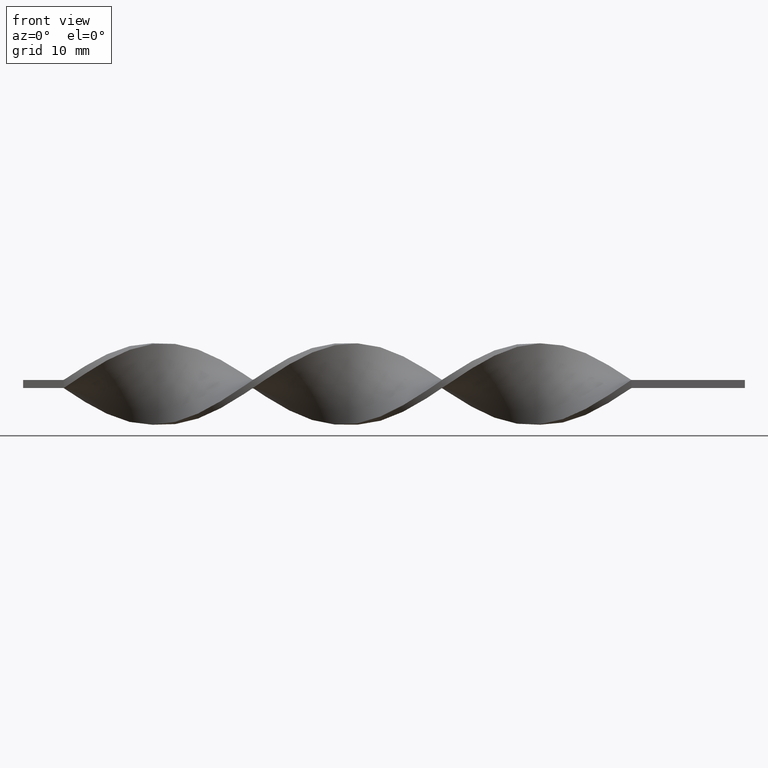
[diagram: clean part render]
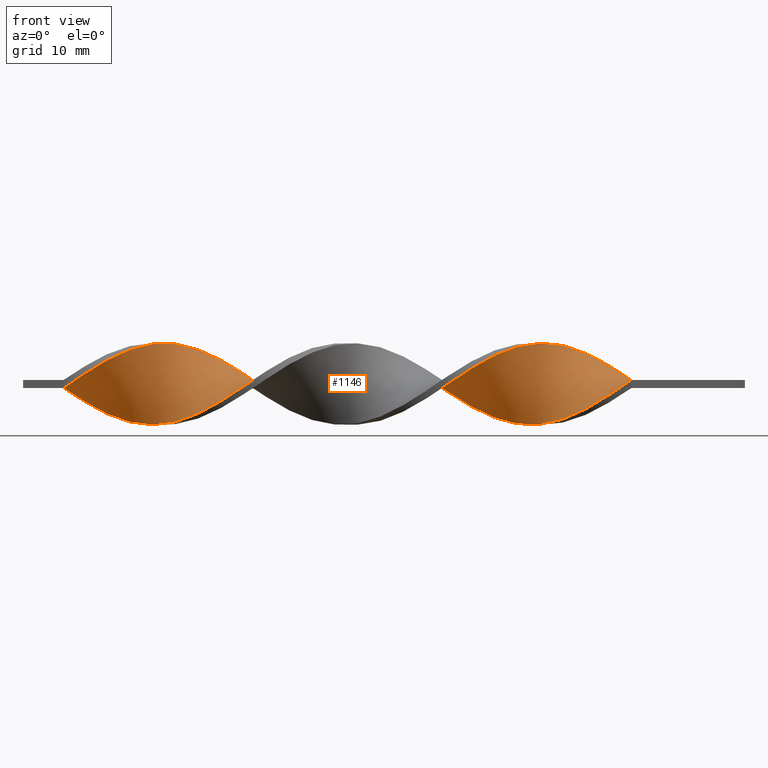
[diagram: same view with one face highlighted and labeled with its STEP entity id]
A machine part, front view. The second image highlights one B-rep face of the part: STEP entity #1146.
In plain terms, the highlighted face is a freeform B-spline surface patch.
Its self-contained STEP definition (entity closure, byte-faithful):
#4 = CARTESIAN_POINT ( 'NONE',  ( -22.07692307692308376, 1.894702360851920897, 4.693865276989235724 ) ) ;
#13 = CARTESIAN_POINT ( 'NONE',  ( -68.74358974358973740, 1.894702360851921119, 4.693865276989235724 ) ) ;
#14 = EDGE_CURVE ( 'NONE', #1318, #1596, #146, .T. ) ;
#16 = CARTESIAN_POINT ( 'NONE',  ( -37.33333333333333570, -5.000000000000002665, -0.4999999999999993339 ) ) ;
#20 = CARTESIAN_POINT ( 'NONE',  ( -31.05128205128205821, -3.716969558312888111, 3.436045048790599576 ) ) ;
#21 = CARTESIAN_POINT ( 'NONE',  ( -73.23076923076924061, -1.099037838325643834, 4.903276030362608395 ) ) ;
#23 = CARTESIAN_POINT ( 'NONE',  ( -47.20512820512820440, -0.7163302668880203727, -5.010902036907449286 ) ) ;
#28 = CARTESIAN_POINT ( 'NONE',  ( -72.33333333333332860, -0.5036723384328442021, -5.036723384328412934 ) ) ;
#34 = CARTESIAN_POINT ( 'NONE',  ( -82.20512820512820440, -4.974366919274040733, 0.7111074127247645205 ) ) ;
#43 = CARTESIAN_POINT ( 'NONE',  ( -84.00000000000000000, -5.000000000000002665, -0.4999999999999993339 ) ) ;
#44 = CARTESIAN_POINT ( 'NONE',  ( -55.28205128205128460, -3.410992411735107144, 3.689868665289526728 ) ) ;
#48 = CARTESIAN_POINT ( 'NONE',  ( -51.69230769230769340, 2.240532556555383081, -4.497778769905806051 ) ) ;
#49 = CARTESIAN_POINT ( 'NONE',  ( -37.33333333333332860, 4.999999999999995559, -0.5000000000000006661 ) ) ;
#52 = CARTESIAN_POINT ( 'NONE',  ( -43.61538461538461320, 3.716969558312884114, 3.436045048790596024 ) ) ;
#56 = CARTESIAN_POINT ( 'NONE',  ( -58.87179487179486870, -4.735051254986480274, 1.682049230150818753 ) ) ;
#67 = CARTESIAN_POINT ( 'NONE',  ( -52.58974358974359120, 2.786661774892322807, -4.225728863414811798 ) ) ;
#89 = CARTESIAN_POINT ( 'NONE',  ( -63.35897435897436480, 4.530813501584090908, 2.256988544190327239 ) ) ;
#98 = CARTESIAN_POINT ( 'NONE',  ( -18.48717948717948900, 3.859023582904235639, 3.275699201900568180 ) ) ;
#104 = CARTESIAN_POINT ( 'NONE',  ( -26.56410256410256210, 0.1063289642275847546, -5.023812710617930222 ) ) ;
#109 = CARTESIAN_POINT ( 'NONE',  ( -26.56410256410256210, -1.099037838325643834, 4.903276030362608395 ) ) ;
#110 = CARTESIAN_POINT ( 'NONE',  ( -84.00000000000000000, -1.666666666666670071, -0.4999999999999997780 ) ) ;
#112 = CARTESIAN_POINT ( 'NONE',  ( -59.76923076923076650, 5.060710991611127696, -0.1071099161113055059 ) ) ;
#117 = CARTESIAN_POINT ( 'NONE',  ( -42.71794871794872250, -3.410992411735112029, -3.689868665289525396 ) ) ;
#121 = CARTESIAN_POINT ( 'NONE',  ( -31.94871794871794535, 3.410992411735102703, -3.689868665289526284 ) ) ;
#122 = CARTESIAN_POINT ( 'NONE',  ( -58.87179487179486870, 4.974366919274036292, -0.7111074127247674070 ) ) ;
#126 = CARTESIAN_POINT ( 'NONE',  ( -16.69230769230770051, 4.530813501584090908, 2.256988544190326795 ) ) ;
#135 = CARTESIAN_POINT ( 'NONE',  ( -25.66666666666667140, -0.5036723384328436470, 5.036723384328413822 ) ) ;
#144 = CARTESIAN_POINT ( 'NONE',  ( -28.35897435897435770, -2.240532556555387078, 4.497778769905806939 ) ) ;
#146 =( BOUNDED_CURVE ( )  B_SPLINE_CURVE ( 2, ( #1580, #833, #205, #1457, #212, #98, #733, #1471, #594, #465, #1093, #336, #864, #1348, #1359, #1235, #144, #906, #374, #20, #524, #357, #1540, #1303, #1525, #418, #408, #291, #672, #803, #680, #556, #1416, #285, #1175, #1282, #666, #1186, #1432, #1288, #1558, #426, #297, #67, #1036, #1031, #272, #659, #1534, #1394, #122, #112, #363, #1349, #450, #89, #585, #456, #327, #845, #1148, #13, #757, #1259, #1137, #1131, #21, #512, #403, #1443, #1542, #427, #308, #1154, #813, #409, #1425, #181, #918 ),
 .UNSPECIFIED., .F., .T. ) 
 B_SPLINE_CURVE_WITH_KNOTS ( ( 3, 2, 2, 2, 2, 2, 2, 2, 2, 2, 2, 2, 2, 2, 2, 2, 2, 2, 2, 2, 2, 2, 2, 2, 2, 2, 2, 2, 2, 2, 2, 2, 2, 2, 2, 2, 2, 2, 2, 3 ),
 ( 0.000000000000000000, 0.01923076923076923184, 0.03846153846153846367, 0.05769230769230768857, 0.07692307692307692735, 0.09615384615384615918, 0.1153846153846153771, 0.1346153846153846090, 0.1538461538461538547, 0.1730769230769230449, 0.1923076923076923184, 0.2115384615384615363, 0.2307692307692307543, 0.2500000000000000000, 0.2692307692307692180, 0.2884615384615384359, 0.3076923076923077094, 0.3269230769230769273, 0.3461538461538460898, 0.3653846153846153633, 0.3846153846153846367, 0.4038461538461539102, 0.4230769230769230727, 0.4423076923076922906, 0.4615384615384615086, 0.4807692307692307820, 0.5000000000000000000, 0.5192307692307692735, 0.5384615384615384359, 0.5576923076923077094, 0.5769230769230768718, 0.5961538461538461453, 0.6153846153846154188, 0.6346153846153845812, 0.6538461538461538547, 0.6730769230769230171, 0.6923076923076921796, 0.7115384615384615641, 0.7307692307692307265, 0.7500000000000000000 ),
 .UNSPECIFIED. ) 
 CURVE ( )  GEOMETRIC_REPRESENTATION_ITEM ( )  RATIONAL_B_SPLINE_CURVE ( ( 1.000000000000000000, 0.9927088740980539727, 1.000000000000000000, 0.9927088740980539727, 1.000000000000000000, 0.9927088740980539727, 1.000000000000000000, 0.9927088740980539727, 1.000000000000000000, 0.9927088740980539727, 1.000000000000000000, 0.9927088740980539727, 1.000000000000000000, 0.9927088740980539727, 1.000000000000000000, 0.9927088740980539727, 1.000000000000000000, 0.9927088740980539727, 1.000000000000000000, 0.9927088740980539727, 1.000000000000000000, 0.9927088740980539727, 1.000000000000000000, 0.9927088740980539727, 1.000000000000000000, 0.9927088740980539727, 1.000000000000000000, 0.9927088740980539727, 1.000000000000000000, 0.9927088740980539727, 1.000000000000000000, 0.9927088740980539727, 1.000000000000000000, 0.9927088740980539727, 1.000000000000000000, 0.9927088740980539727, 1.000000000000000000, 0.9927088740980539727, 1.000000000000000000, 0.9927088740980539727, 1.000000000000000000, 0.9927088740980539727, 1.000000000000000000, 0.9927088740980539727, 1.000000000000000000, 0.9927088740980539727, 1.000000000000000000, 0.9927088740980539727, 1.000000000000000000, 0.9927088740980539727, 1.000000000000000000, 0.9927088740980539727, 1.000000000000000000, 0.9927088740980539727, 1.000000000000000000, 0.9927088740980539727, 1.000000000000000000, 0.9927088740980539727, 1.000000000000000000, 0.9927088740980539727, 1.000000000000000000, 0.9927088740980539727, 1.000000000000000000, 0.9927088740980539727, 1.000000000000000000, 0.9927088740980539727, 1.000000000000000000, 0.9927088740980539727, 1.000000000000000000, 0.9927088740980539727, 1.000000000000000000, 0.9927088740980539727, 1.000000000000000000, 0.9927088740980539727, 1.000000000000000000, 0.9927088740980539727, 1.000000000000000000, 0.9927088740980539727, 1.000000000000000000 ) ) 
 REPRESENTATION_ITEM ( '' )  );
#147 = CARTESIAN_POINT ( 'NONE',  ( -41.82051282051282470, -3.859023582904240968, -3.275699201900568180 ) ) ;
#156 = CARTESIAN_POINT ( 'NONE',  ( -82.20512820512820440, 4.735051254986476721, -1.682049230150816088 ) ) ;
#159 = CARTESIAN_POINT ( 'NONE',  ( -66.05128205128204399, 3.410992411735105811, 3.689868665289526284 ) ) ;
#161 = CARTESIAN_POINT ( 'NONE',  ( -74.12820512820510999, 0.7163302668880149326, -5.010902036907446622 ) ) ;
#164 = CARTESIAN_POINT ( 'NONE',  ( -52.58974358974358410, 2.786661774892322807, -4.225728863414811798 ) ) ;
#166 = CARTESIAN_POINT ( 'NONE',  ( -23.87179487179487580, -1.694403338218445576, -4.769828676396802081 ) ) ;
#167 = CARTESIAN_POINT ( 'NONE',  ( -56.17948717948717530, -3.859023582904238303, 3.275699201900568180 ) ) ;
#170 = CARTESIAN_POINT ( 'NONE',  ( -77.71794871794874382, 2.962961240565973320, -4.104038128678484831 ) ) ;
#173 = CARTESIAN_POINT ( 'NONE',  ( -74.12820512820512420, -1.694403338218445132, 4.769828676396804745 ) ) ;
#175 = CARTESIAN_POINT ( 'NONE',  ( -61.56410256410256920, -5.060710991611132137, -0.1071099161113024806 ) ) ;
#178 = CARTESIAN_POINT ( 'NONE',  ( -76.82051282051281760, -3.251815666602609234, 3.830886956102704133 ) ) ;
#179 = CARTESIAN_POINT ( 'NONE',  ( -35.53846153846153300, 4.735051254986476721, -1.682049230150816088 ) ) ;
#181 = CARTESIAN_POINT ( 'NONE',  ( -83.10256410256410220, -5.060710991611133025, 0.1071099161113049647 ) ) ;
#185 = CARTESIAN_POINT ( 'NONE',  ( -39.12820512820512420, 4.974366919274035403, 0.7111074127247607457 ) ) ;
#186 = FACE_OUTER_BOUND ( 'NONE', #982, .T. ) ;
#205 = CARTESIAN_POINT ( 'NONE',  ( -15.79487179487179560, 4.735051254986478497, 1.682049230150814756 ) ) ;
#212 = CARTESIAN_POINT ( 'NONE',  ( -17.58974358974358765, 4.194918542244162829, 2.766343873045447488 ) ) ;
#214 = CARTESIAN_POINT ( 'NONE',  ( -39.12820512820512420, 4.974366919274035403, 0.7111074127247607457 ) ) ;
#219 = DIRECTION ( 'NONE',  ( 1.734723475976807341E-16, -1.000000000000000000, 0.000000000000000000 ) ) ;
#223 = CARTESIAN_POINT ( 'NONE',  ( -67.84615384615385381, -3.251815666602609234, -3.830886956102702356 ) ) ;
#230 = CARTESIAN_POINT ( 'NONE',  ( -20.28205128205128460, 2.962961240565976428, 4.104038128678484831 ) ) ;
#233 = CARTESIAN_POINT ( 'NONE',  ( -13.99999999999999822, 4.999999999999997335, 0.5000000000000000000 ) ) ;
#235 = ORIENTED_EDGE ( 'NONE', *, *, #860, .F. ) ;
#237 = CARTESIAN_POINT ( 'NONE',  ( -14.00000000000000000, 4.999999999999997335, 0.5000000000000000000 ) ) ;
#242 = ORIENTED_EDGE ( 'NONE', *, *, #362, .F. ) ;
#245 = CARTESIAN_POINT ( 'NONE',  ( -14.89743589743589780, 4.939289008388866975, 1.107109916111302939 ) ) ;
#253 = CARTESIAN_POINT ( 'NONE',  ( -18.48717948717948900, 3.859023582904236083, 3.275699201900568180 ) ) ;
#260 = CARTESIAN_POINT ( 'NONE',  ( -65.15384615384616041, 3.859023582904236083, 3.275699201900568180 ) ) ;
#266 = CARTESIAN_POINT ( 'NONE',  ( -79.51282051282051100, -4.431260581638922780, 2.446670785446253049 ) ) ;
#271 = CARTESIAN_POINT ( 'NONE',  ( -47.20512820512820440, 1.694403338218440691, 4.769828676396802969 ) ) ;
#272 = CARTESIAN_POINT ( 'NONE',  ( -55.28205128205128460, 4.074115069975898784, -2.941357917118427423 ) ) ;
#274 = CARTESIAN_POINT ( 'NONE',  ( -59.76923076923077360, 5.060710991611128584, -0.1071099161113055059 ) ) ;
#275 = CARTESIAN_POINT ( 'NONE',  ( -20.28205128205128460, -3.716969558312888555, -3.436045048790597356 ) ) ;
#276 = CARTESIAN_POINT ( 'NONE',  ( -43.61538461538461320, 3.716969558312884114, 3.436045048790596024 ) ) ;
#281 = CARTESIAN_POINT ( 'NONE',  ( -71.43589743589743080, -1.099037838325645167, -4.903276030362606619 ) ) ;
#282 = CARTESIAN_POINT ( 'NONE',  ( -54.38461538461538680, -2.962961240565975984, 4.104038128678485720 ) ) ;
#285 = CARTESIAN_POINT ( 'NONE',  ( -43.61538461538462030, -2.962961240565982646, -4.104038128678484831 ) ) ;
#287 = CARTESIAN_POINT ( 'NONE',  ( -66.94871794871794179, 2.962961240565976428, 4.104038128678484831 ) ) ;
#288 = CARTESIAN_POINT ( 'NONE',  ( -53.48717948717948900, -2.428831800708951327, 4.398951702833859834 ) ) ;
#289 = CARTESIAN_POINT ( 'NONE',  ( -26.56410256410256210, 0.1063289642275847546, -5.023812710617930222 ) ) ;
#291 = CARTESIAN_POINT ( 'NONE',  ( -38.23076923076922640, -4.939289008388872304, -1.107109916111301828 ) ) ;
#294 = CARTESIAN_POINT ( 'NONE',  ( -59.76923076923076650, -4.939289008388870528, 1.107109916111305381 ) ) ;
#295 = CARTESIAN_POINT ( 'NONE',  ( -31.94871794871794535, 3.410992411735102703, -3.689868665289526284 ) ) ;
#297 = CARTESIAN_POINT ( 'NONE',  ( -51.69230769230769340, 2.240532556555383081, -4.497778769905806051 ) ) ;
#305 = CARTESIAN_POINT ( 'NONE',  ( -15.79487179487179205, -4.974366919274039844, -0.7111074127247621890 ) ) ;
#308 = CARTESIAN_POINT ( 'NONE',  ( -78.61538461538461320, -4.074115069975905001, 2.941357917118426535 ) ) ;
#327 = CARTESIAN_POINT ( 'NONE',  ( -66.05128205128204399, 3.410992411735105811, 3.689868665289526284 ) ) ;
#329 = CARTESIAN_POINT ( 'NONE',  ( -38.23076923076922640, 5.060710991611126808, 0.1071099161113012732 ) ) ;
#336 = CARTESIAN_POINT ( 'NONE',  ( -23.87179487179487936, 0.7163302668880159318, 5.010902036907449286 ) ) ;
#339 = CARTESIAN_POINT ( 'NONE',  ( -49.00000000000000711, 0.5036723384328382069, -5.036723384328413822 ) ) ;
#343 = EDGE_CURVE ( 'NONE', #883, #498, #1239, .T. ) ;
#351 = CARTESIAN_POINT ( 'NONE',  ( -30.15384615384615685, -3.251815666602609234, 3.830886956102704133 ) ) ;
#352 = CARTESIAN_POINT ( 'NONE',  ( -67.84615384615385381, -3.251815666602609234, -3.830886956102702356 ) ) ;
#357 = CARTESIAN_POINT ( 'NONE',  ( -32.84615384615384670, -4.431260581638921892, 2.446670785446253049 ) ) ;
#360 = CARTESIAN_POINT ( 'NONE',  ( -80.41025641025640880, 4.194918542244161053, -2.766343873045447488 ) ) ;
#362 = EDGE_CURVE ( 'NONE', #498, #1596, #579, .T. ) ;
#363 = CARTESIAN_POINT ( 'NONE',  ( -60.66666666666666430, 4.999999999999997335, 0.5000000000000000000 ) ) ;
#368 = CARTESIAN_POINT ( 'NONE',  ( -44.51282051282051100, -2.428831800708954436, -4.398951702833859834 ) ) ;
#374 = CARTESIAN_POINT ( 'NONE',  ( -30.15384615384615685, -3.251815666602609234, 3.830886956102704133 ) ) ;
#377 = CARTESIAN_POINT ( 'NONE',  ( -73.23076923076924061, 0.1063289642275847546, -5.023812710617930222 ) ) ;
#383 = CARTESIAN_POINT ( 'NONE',  ( -83.10256410256410220, -5.060710991611133025, 0.1071099161113049508 ) ) ;
#388 = CARTESIAN_POINT ( 'NONE',  ( -70.53846153846153300, -1.694403338218445576, -4.769828676396802081 ) ) ;
#394 = CARTESIAN_POINT ( 'NONE',  ( -77.71794871794872961, -3.716969558312888111, 3.436045048790599576 ) ) ;
#402 = CARTESIAN_POINT ( 'NONE',  ( -48.10256410256410220, 1.099037838325642280, 4.903276030362606619 ) ) ;
#403 = CARTESIAN_POINT ( 'NONE',  ( -75.02564102564102200, -2.240532556555387078, 4.497778769905806939 ) ) ;
#405 = CARTESIAN_POINT ( 'NONE',  ( -70.53846153846153300, 0.7163302668880159318, 5.010902036907450174 ) ) ;
#406 = CARTESIAN_POINT ( 'NONE',  ( -57.97435897435897090, -4.530813501584093572, 2.256988544190328128 ) ) ;
#408 = CARTESIAN_POINT ( 'NONE',  ( -37.33333333333333570, -5.000000000000002665, -0.4999999999999993339 ) ) ;
#409 = CARTESIAN_POINT ( 'NONE',  ( -81.30769230769232081, -4.888022846936950216, 1.315104909338224326 ) ) ;
#411 = CARTESIAN_POINT ( 'NONE',  ( -67.84615384615385381, 2.428831800708949107, 4.398951702833859834 ) ) ;
#415 = CARTESIAN_POINT ( 'NONE',  ( -14.89743589743589602, -5.060710991611132137, -0.1071099161113024806 ) ) ;
#418 = CARTESIAN_POINT ( 'NONE',  ( -36.43589743589743790, -5.060710991611133025, 0.1071099161113049647 ) ) ;
#426 = CARTESIAN_POINT ( 'NONE',  ( -50.79487179487178850, 1.694403338218438915, -4.769828676396804745 ) ) ;
#427 = CARTESIAN_POINT ( 'NONE',  ( -77.71794871794874382, -3.716969558312888111, 3.436045048790599576 ) ) ;
#437 = CARTESIAN_POINT ( 'NONE',  ( -13.99999999999999822, 4.999999999999997335, 0.5000000000000000000 ) ) ;
#441 = CARTESIAN_POINT ( 'NONE',  ( -24.76923076923076650, -1.099037838325645167, -4.903276030362606619 ) ) ;
#444 = CARTESIAN_POINT ( 'NONE',  ( -40.92307692307691980, 4.659641714287929837, 1.880887847392236800 ) ) ;
#450 = CARTESIAN_POINT ( 'NONE',  ( -62.46153846153845990, 4.735051254986478497, 1.682049230150814756 ) ) ;
#456 = CARTESIAN_POINT ( 'NONE',  ( -65.15384615384616041, 3.859023582904235639, 3.275699201900568180 ) ) ;
#458 = CARTESIAN_POINT ( 'NONE',  ( -47.20512820512820440, 1.694403338218440691, 4.769828676396802969 ) ) ;
#465 = CARTESIAN_POINT ( 'NONE',  ( -22.07692307692308020, 1.894702360851921119, 4.693865276989235724 ) ) ;
#468 = CARTESIAN_POINT ( 'NONE',  ( -48.10256410256410220, 1.099037838325642280, 4.903276030362606619 ) ) ;
#480 = CARTESIAN_POINT ( 'NONE',  ( -23.87179487179487936, 0.7163302668880159318, 5.010902036907450174 ) ) ;
#484 = CARTESIAN_POINT ( 'NONE',  ( -81.30769230769232081, 4.530813501584088243, -2.256988544190327683 ) ) ;
#489 = CARTESIAN_POINT ( 'NONE',  ( -70.53846153846153300, -1.694403338218445576, -4.769828676396802081 ) ) ;
#493 = CARTESIAN_POINT ( 'NONE',  ( -33.74358974358974450, 4.194918542244161053, -2.766343873045447488 ) ) ;
#496 = CARTESIAN_POINT ( 'NONE',  ( -31.94871794871794535, -4.074115069975905001, 2.941357917118426535 ) ) ;
#498 = VERTEX_POINT ( 'NONE', #1026 ) ;
#499 = CARTESIAN_POINT ( 'NONE',  ( -50.79487179487178850, -0.7163302668880178192, 5.010902036907447510 ) ) ;
#501 = VECTOR ( 'NONE', #219, 1000.000000000000000 ) ;
#502 = CARTESIAN_POINT ( 'NONE',  ( -36.43589743589743790, 4.939289008388865199, -1.107109916111304937 ) ) ;
#509 = CARTESIAN_POINT ( 'NONE',  ( -72.33333333333332860, -0.5036723384328442021, -5.036723384328412045 ) ) ;
#512 = CARTESIAN_POINT ( 'NONE',  ( -74.12820512820510999, -1.694403338218445132, 4.769828676396803857 ) ) ;
#524 = CARTESIAN_POINT ( 'NONE',  ( -31.94871794871794535, -4.074115069975905001, 2.941357917118426535 ) ) ;
#526 = CARTESIAN_POINT ( 'NONE',  ( -53.48717948717948900, 3.251815666602603905, -3.830886956102705465 ) ) ;
#534 = CARTESIAN_POINT ( 'NONE',  ( -56.17948717948717530, 4.431260581638917451, -2.446670785446253937 ) ) ;
#536 = CARTESIAN_POINT ( 'NONE',  ( -57.07692307692307310, -4.194918542244165494, 2.766343873045449708 ) ) ;
#537 = CARTESIAN_POINT ( 'NONE',  ( -84.00000000000000000, 4.999999999999995559, -0.5000000000000006661 ) ) ;
#539 = CARTESIAN_POINT ( 'NONE',  ( -79.51282051282051100, 3.859023582904232974, -3.275699201900567292 ) ) ;
#542 = CARTESIAN_POINT ( 'NONE',  ( -61.56410256410256920, 4.939289008388866975, 1.107109916111302939 ) ) ;
#543 = CARTESIAN_POINT ( 'NONE',  ( -56.17948717948717530, -3.859023582904238303, 3.275699201900567736 ) ) ;
#545 = CARTESIAN_POINT ( 'NONE',  ( -19.38461538461538325, -4.074115069975905001, -2.941357917118423870 ) ) ;
#546 = CARTESIAN_POINT ( 'NONE',  ( -63.35897435897435770, -4.888022846936949328, -1.315104909338221884 ) ) ;
#549 = CARTESIAN_POINT ( 'NONE',  ( -44.51282051282051100, 3.251815666602604349, 3.830886956102702356 ) ) ;
#551 = CARTESIAN_POINT ( 'NONE',  ( -84.00000000000000000, -5.000000000000002665, -0.4999999999999993339 ) ) ;
#552 = CARTESIAN_POINT ( 'NONE',  ( -58.87179487179486870, -4.735051254986480274, 1.682049230150818753 ) ) ;
#554 = CARTESIAN_POINT ( 'NONE',  ( -64.25641025641024839, -4.659641714287935166, -1.880887847392236800 ) ) ;
#556 = CARTESIAN_POINT ( 'NONE',  ( -41.82051282051282470, -3.859023582904240968, -3.275699201900567736 ) ) ;
#563 = CARTESIAN_POINT ( 'NONE',  ( -22.07692307692308020, -2.786661774892330357, -4.225728863414808245 ) ) ;
#572 = CARTESIAN_POINT ( 'NONE',  ( -40.02564102564102200, 4.888022846936944887, 1.315104909338220329 ) ) ;
#579 = B_SPLINE_CURVE_WITH_KNOTS ( 'NONE', 3,
 ( #1492, #1228, #110, #887 ),
 .UNSPECIFIED., .F., .F.,
 ( 4, 4 ),
 ( 0.000000000000000000, 1.000000000000000000 ),
 .UNSPECIFIED. ) ;
#585 = CARTESIAN_POINT ( 'NONE',  ( -64.25641025641024839, 4.194918542244162829, 2.766343873045447488 ) ) ;
#587 = CARTESIAN_POINT ( 'NONE',  ( -44.51282051282051100, 3.251815666602604349, 3.830886956102702356 ) ) ;
#590 = CARTESIAN_POINT ( 'NONE',  ( -27.46153846153846345, 0.7163302668880149326, -5.010902036907446622 ) ) ;
#594 = CARTESIAN_POINT ( 'NONE',  ( -21.17948717948717885, 2.428831800708949107, 4.398951702833859834 ) ) ;
#597 = CARTESIAN_POINT ( 'NONE',  ( -41.82051282051281760, 4.431260581638917451, 2.446670785446250829 ) ) ;
#602 = CARTESIAN_POINT ( 'NONE',  ( -29.25641025641025905, 1.894702360851919787, -4.693865276989233948 ) ) ;
#606 = CARTESIAN_POINT ( 'NONE',  ( -81.30769230769233502, 4.530813501584088243, -2.256988544190327239 ) ) ;
#614 = CARTESIAN_POINT ( 'NONE',  ( -79.51282051282051100, 3.859023582904233418, -3.275699201900567736 ) ) ;
#617 = CARTESIAN_POINT ( 'NONE',  ( -32.84615384615384670, 3.859023582904232974, -3.275699201900567292 ) ) ;
#623 = CARTESIAN_POINT ( 'NONE',  ( -74.12820512820512420, 0.7163302668880148216, -5.010902036907447510 ) ) ;
#630 = CARTESIAN_POINT ( 'NONE',  ( -32.84615384615384670, -4.431260581638922780, 2.446670785446253049 ) ) ;
#638 = CARTESIAN_POINT ( 'NONE',  ( -35.53846153846154010, -4.974366919274040733, 0.7111074127247645205 ) ) ;
#647 = CARTESIAN_POINT ( 'NONE',  ( -68.74358974358973740, -2.786661774892330357, -4.225728863414808245 ) ) ;
#650 = CARTESIAN_POINT ( 'NONE',  ( -83.10256410256410220, 4.939289008388865199, -1.107109916111304937 ) ) ;
#653 = CARTESIAN_POINT ( 'NONE',  ( -73.23076923076924061, -1.099037838325643834, 4.903276030362608395 ) ) ;
#654 = CARTESIAN_POINT ( 'NONE',  ( -69.64102564102564941, -2.240532556555387966, -4.497778769905804275 ) ) ;
#657 = CARTESIAN_POINT ( 'NONE',  ( -75.02564102564102200, 1.305516313869967027, -4.852383656948339841 ) ) ;
#659 = CARTESIAN_POINT ( 'NONE',  ( -56.17948717948717530, 4.431260581638916562, -2.446670785446253937 ) ) ;
#662 = CARTESIAN_POINT ( 'NONE',  ( -58.87179487179486870, 4.974366919274036292, -0.7111074127247674070 ) ) ;
#663 = CARTESIAN_POINT ( 'NONE',  ( -13.99999999999999822, -5.000000000000000888, 0.5000000000000000000 ) ) ;
#666 = CARTESIAN_POINT ( 'NONE',  ( -46.30769230769230660, -1.305516313869974576, -4.852383656948342505 ) ) ;
#670 = CARTESIAN_POINT ( 'NONE',  ( -62.46153846153845990, -4.974366919274039844, -0.7111074127247621890 ) ) ;
#672 = CARTESIAN_POINT ( 'NONE',  ( -39.12820512820512420, -4.735051254986484714, -1.682049230150813202 ) ) ;
#677 = CARTESIAN_POINT ( 'NONE',  ( -49.00000000000000711, 0.5036723384328398723, 5.036723384328412045 ) ) ;
#680 = CARTESIAN_POINT ( 'NONE',  ( -40.92307692307691980, -4.194918542244167270, -2.766343873045447044 ) ) ;
#686 = CARTESIAN_POINT ( 'NONE',  ( -22.97435897435897090, -2.240532556555387966, -4.497778769905804275 ) ) ;
#718 = CARTESIAN_POINT ( 'NONE',  ( -36.43589743589743790, 4.939289008388865199, -1.107109916111304715 ) ) ;
#725 = CARTESIAN_POINT ( 'NONE',  ( -15.79487179487179560, 4.735051254986478497, 1.682049230150814756 ) ) ;
#733 = CARTESIAN_POINT ( 'NONE',  ( -19.38461538461538680, 3.410992411735105811, 3.689868665289526284 ) ) ;
#736 = CARTESIAN_POINT ( 'NONE',  ( -71.43589743589743080, -1.099037838325645167, -4.903276030362606619 ) ) ;
#742 = CARTESIAN_POINT ( 'NONE',  ( -75.92307692307693401, 1.894702360851919565, -4.693865276989233948 ) ) ;
#752 = CARTESIAN_POINT ( 'NONE',  ( -21.17948717948717885, 2.428831800708949107, 4.398951702833859834 ) ) ;
#757 = CARTESIAN_POINT ( 'NONE',  ( -69.64102564102564941, 1.305516313869969247, 4.852383656948342505 ) ) ;
#759 = CARTESIAN_POINT ( 'NONE',  ( -33.74358974358974450, -4.659641714287936054, 1.880887847392238577 ) ) ;
#775 = CARTESIAN_POINT ( 'NONE',  ( -13.99999999999999645, -5.000000000000000888, 0.5000000000000000000 ) ) ;
#777 = CARTESIAN_POINT ( 'NONE',  ( -68.74358974358973740, 1.894702360851920897, 4.693865276989235724 ) ) ;
#782 = CARTESIAN_POINT ( 'NONE',  ( -76.82051282051281760, 2.428831800708946886, -4.398951702833858945 ) ) ;
#785 = CARTESIAN_POINT ( 'NONE',  ( -69.64102564102564941, 1.305516313869969247, 4.852383656948342505 ) ) ;
#786 = CARTESIAN_POINT ( 'NONE',  ( -22.97435897435897090, -2.240532556555387966, -4.497778769905804275 ) ) ;
#787 = CARTESIAN_POINT ( 'NONE',  ( -49.89743589743589069, -0.1063289642275868085, 5.023812710617930222 ) ) ;
#791 = CARTESIAN_POINT ( 'NONE',  ( -54.38461538461538680, 3.716969558312881450, -3.436045048790601797 ) ) ;
#793 = CARTESIAN_POINT ( 'NONE',  ( -59.76923076923077360, -4.939289008388870528, 1.107109916111305159 ) ) ;
#800 = CARTESIAN_POINT ( 'NONE',  ( -14.89743589743589602, -5.060710991611131249, -0.1071099161113024806 ) ) ;
#801 = CARTESIAN_POINT ( 'NONE',  ( -29.25641025641025905, 1.894702360851919565, -4.693865276989233948 ) ) ;
#803 = CARTESIAN_POINT ( 'NONE',  ( -40.02564102564102200, -4.530813501584097125, -2.256988544190325463 ) ) ;
#806 = CARTESIAN_POINT ( 'NONE',  ( -60.66666666666666430, -5.000000000000000888, 0.5000000000000000000 ) ) ;
#809 = CARTESIAN_POINT ( 'NONE',  ( -38.23076923076922640, 5.060710991611125920, 0.1071099161113012732 ) ) ;
#810 = CARTESIAN_POINT ( 'NONE',  ( -18.48717948717948545, -4.431260581638921003, -2.446670785446251273 ) ) ;
#811 = CARTESIAN_POINT ( 'NONE',  ( -32.84615384615384670, 3.859023582904233418, -3.275699201900567736 ) ) ;
#813 = CARTESIAN_POINT ( 'NONE',  ( -80.41025641025640880, -4.659641714287936054, 1.880887847392238577 ) ) ;
#829 = CARTESIAN_POINT ( 'NONE',  ( -41.82051282051281760, 4.431260581638916562, 2.446670785446250829 ) ) ;
#833 = CARTESIAN_POINT ( 'NONE',  ( -14.89743589743589780, 4.939289008388866975, 1.107109916111302939 ) ) ;
#845 = CARTESIAN_POINT ( 'NONE',  ( -66.94871794871795601, 2.962961240565976428, 4.104038128678485720 ) ) ;
#848 = CARTESIAN_POINT ( 'NONE',  ( -19.38461538461538325, -4.074115069975905001, -2.941357917118423870 ) ) ;
#859 = CARTESIAN_POINT ( 'NONE',  ( -49.89743589743589069, 1.099037838325636285, -4.903276030362610172 ) ) ;
#860 = EDGE_CURVE ( 'NONE', #1318, #883, #1480, .T. ) ;
#864 = CARTESIAN_POINT ( 'NONE',  ( -24.76923076923077005, 0.1063289642275867114, 5.023812710617931998 ) ) ;
#867 = CARTESIAN_POINT ( 'NONE',  ( -31.05128205128206176, -3.716969558312888111, 3.436045048790599576 ) ) ;
#877 = CARTESIAN_POINT ( 'NONE',  ( -66.94871794871794179, -3.716969558312888555, -3.436045048790597356 ) ) ;
#883 = VERTEX_POINT ( 'NONE', #965 ) ;
#885 = CARTESIAN_POINT ( 'NONE',  ( -84.00000000000000000, 4.999999999999995559, -0.5000000000000006661 ) ) ;
#887 = CARTESIAN_POINT ( 'NONE',  ( -84.00000000000000000, -5.000000000000002665, -0.4999999999999993339 ) ) ;
#889 = CARTESIAN_POINT ( 'NONE',  ( -80.41025641025640880, 4.194918542244161053, -2.766343873045447488 ) ) ;
#894 = CARTESIAN_POINT ( 'NONE',  ( -66.05128205128204399, -4.074115069975905001, -2.941357917118423870 ) ) ;
#906 = CARTESIAN_POINT ( 'NONE',  ( -29.25641025641026260, -2.786661774892330801, 4.225728863414810021 ) ) ;
#909 = CARTESIAN_POINT ( 'NONE',  ( -52.58974358974359120, -1.894702360851922451, 4.693865276989233948 ) ) ;
#910 = CARTESIAN_POINT ( 'NONE',  ( -73.23076923076924061, 0.1063289642275847546, -5.023812710617930222 ) ) ;
#918 = CARTESIAN_POINT ( 'NONE',  ( -84.00000000000000000, -5.000000000000002665, -0.4999999999999993339 ) ) ;
#920 = CARTESIAN_POINT ( 'NONE',  ( -60.66666666666666430, 4.999999999999997335, 0.5000000000000000000 ) ) ;
#921 = CARTESIAN_POINT ( 'NONE',  ( -50.79487179487178850, -0.7163302668880178192, 5.010902036907448398 ) ) ;
#931 = CARTESIAN_POINT ( 'NONE',  ( -16.69230769230769695, -4.888022846936949328, -1.315104909338221884 ) ) ;
#965 = CARTESIAN_POINT ( 'NONE',  ( -13.99999999999999645, -5.000000000000000888, 0.5000000000000000000 ) ) ;
#968 = CARTESIAN_POINT ( 'NONE',  ( -18.48717948717948545, -4.431260581638921892, -2.446670785446251273 ) ) ;
#971 = ORIENTED_EDGE ( 'NONE', *, *, #14, .T. ) ;
#977 = CARTESIAN_POINT ( 'NONE',  ( -34.64102564102564230, -4.888022846936950216, 1.315104909338224548 ) ) ;
#982 = EDGE_LOOP ( 'NONE', ( #235, #971, #242, #1481 ) ) ;
#988 = CARTESIAN_POINT ( 'NONE',  ( -28.35897435897435770, -2.240532556555387078, 4.497778769905806939 ) ) ;
#990 = CARTESIAN_POINT ( 'NONE',  ( -30.15384615384615330, 2.428831800708946886, -4.398951702833858945 ) ) ;
#994 = CARTESIAN_POINT ( 'NONE',  ( -65.15384615384614619, -4.431260581638921892, -2.446670785446251273 ) ) ;
#995 = CARTESIAN_POINT ( 'NONE',  ( -66.05128205128204399, -4.074115069975905001, -2.941357917118423870 ) ) ;
#997 = CARTESIAN_POINT ( 'NONE',  ( -34.64102564102564230, 4.530813501584088243, -2.256988544190327683 ) ) ;
#1004 = CARTESIAN_POINT ( 'NONE',  ( -19.38461538461538680, 3.410992411735105811, 3.689868665289526284 ) ) ;
#1006 = CARTESIAN_POINT ( 'NONE',  ( -66.94871794871795601, -3.716969558312888555, -3.436045048790597356 ) ) ;
#1009 = CARTESIAN_POINT ( 'NONE',  ( -37.33333333333332860, 4.999999999999995559, -0.5000000000000006661 ) ) ;
#1015 = CARTESIAN_POINT ( 'NONE',  ( -45.41025641025640880, -1.894702360851929113, -4.693865276989233948 ) ) ;
#1020 = CARTESIAN_POINT ( 'NONE',  ( -55.28205128205128460, 4.074115069975898784, -2.941357917118427423 ) ) ;
#1025 = CARTESIAN_POINT ( 'NONE',  ( -75.02564102564102200, -2.240532556555387078, 4.497778769905806939 ) ) ;
#1026 = CARTESIAN_POINT ( 'NONE',  ( -84.00000000000000000, 4.999999999999995559, -0.5000000000000006661 ) ) ;
#1031 = CARTESIAN_POINT ( 'NONE',  ( -54.38461538461538680, 3.716969558312881450, -3.436045048790601797 ) ) ;
#1032 = CARTESIAN_POINT ( 'NONE',  ( -62.46153846153845990, 4.735051254986478497, 1.682049230150814756 ) ) ;
#1034 = CARTESIAN_POINT ( 'NONE',  ( -75.92307692307691980, 1.894702360851919787, -4.693865276989233948 ) ) ;
#1036 = CARTESIAN_POINT ( 'NONE',  ( -53.48717948717948900, 3.251815666602603905, -3.830886956102705465 ) ) ;
#1038 = CARTESIAN_POINT ( 'NONE',  ( -57.97435897435897090, 4.888022846936944887, -1.315104909338225214 ) ) ;
#1039 = CARTESIAN_POINT ( 'NONE',  ( -35.53846153846153300, 4.735051254986476721, -1.682049230150816088 ) ) ;
#1040 = CARTESIAN_POINT ( 'NONE',  ( -27.46153846153846345, 0.7163302668880148216, -5.010902036907447510 ) ) ;
#1042 = CARTESIAN_POINT ( 'NONE',  ( -42.71794871794872250, 4.074115069975900560, 2.941357917118423426 ) ) ;
#1045 = CARTESIAN_POINT ( 'NONE',  ( -21.17948717948717885, -3.251815666602609234, -3.830886956102702356 ) ) ;
#1046 = CARTESIAN_POINT ( 'NONE',  ( -25.66666666666666785, -0.5036723384328442021, -5.036723384328412045 ) ) ;
#1054 = CARTESIAN_POINT ( 'NONE',  ( -20.28205128205128460, -3.716969558312888555, -3.436045048790597356 ) ) ;
#1059 = CARTESIAN_POINT ( 'NONE',  ( -61.56410256410256920, -5.060710991611131249, -0.1071099161113024806 ) ) ;
#1089 = CARTESIAN_POINT ( 'NONE',  ( -33.74358974358974450, 4.194918542244161053, -2.766343873045447488 ) ) ;
#1093 = CARTESIAN_POINT ( 'NONE',  ( -22.97435897435897445, 1.305516313869969247, 4.852383656948342505 ) ) ;
#1095 = CARTESIAN_POINT ( 'NONE',  ( -45.41025641025640880, 2.786661774892326804, 4.225728863414806469 ) ) ;
#1102 = CARTESIAN_POINT ( 'NONE',  ( -82.20512820512820440, 4.735051254986476721, -1.682049230150816088 ) ) ;
#1104 = CARTESIAN_POINT ( 'NONE',  ( -28.35897435897435770, 1.305516313869967027, -4.852383656948339841 ) ) ;
#1110 = CARTESIAN_POINT ( 'NONE',  ( -75.02564102564102200, 1.305516313869967027, -4.852383656948339841 ) ) ;
#1116 = CARTESIAN_POINT ( 'NONE',  ( -69.64102564102564941, -2.240532556555387966, -4.497778769905804275 ) ) ;
#1124 = CARTESIAN_POINT ( 'NONE',  ( -40.02564102564102200, -4.530813501584097125, -2.256988544190325463 ) ) ;
#1131 = CARTESIAN_POINT ( 'NONE',  ( -72.33333333333332860, -0.5036723384328436470, 5.036723384328414710 ) ) ;
#1133 = CARTESIAN_POINT ( 'NONE',  ( -43.61538461538462030, -2.962961240565982202, -4.104038128678483943 ) ) ;
#1137 = CARTESIAN_POINT ( 'NONE',  ( -71.43589743589744501, 0.1063289642275867114, 5.023812710617931998 ) ) ;
#1139 = CARTESIAN_POINT ( 'NONE',  ( -78.61538461538461320, -4.074115069975905001, 2.941357917118426535 ) ) ;
#1141 = CARTESIAN_POINT ( 'NONE',  ( -65.15384615384614619, -4.431260581638921003, -2.446670785446251273 ) ) ;
#1146 = ADVANCED_FACE ( 'NONE', ( #186 ), #1307, .T. ) ;
#1148 = CARTESIAN_POINT ( 'NONE',  ( -67.84615384615385381, 2.428831800708949107, 4.398951702833859834 ) ) ;
#1150 = CARTESIAN_POINT ( 'NONE',  ( -57.07692307692307310, 4.659641714287929837, -1.880887847392241463 ) ) ;
#1154 = CARTESIAN_POINT ( 'NONE',  ( -79.51282051282051100, -4.431260581638921892, 2.446670785446253049 ) ) ;
#1156 = CARTESIAN_POINT ( 'NONE',  ( -64.25641025641024839, 4.194918542244162829, 2.766343873045447488 ) ) ;
#1159 = CARTESIAN_POINT ( 'NONE',  ( -42.71794871794872250, 4.074115069975900560, 2.941357917118423426 ) ) ;
#1162 = CARTESIAN_POINT ( 'NONE',  ( -78.61538461538461320, 3.410992411735102703, -3.689868665289526284 ) ) ;
#1166 = CARTESIAN_POINT ( 'NONE',  ( -17.58974358974358765, -4.659641714287935166, -1.880887847392236800 ) ) ;
#1170 = CARTESIAN_POINT ( 'NONE',  ( -81.30769230769233502, -4.888022846936950216, 1.315104909338224548 ) ) ;
#1171 = CARTESIAN_POINT ( 'NONE',  ( -55.28205128205128460, -3.410992411735107144, 3.689868665289526728 ) ) ;
#1173 = CARTESIAN_POINT ( 'NONE',  ( -22.07692307692308376, -2.786661774892329912, -4.225728863414808245 ) ) ;
#1175 = CARTESIAN_POINT ( 'NONE',  ( -44.51282051282051100, -2.428831800708954436, -4.398951702833859834 ) ) ;
#1182 = CARTESIAN_POINT ( 'NONE',  ( -40.02564102564102200, 4.888022846936944887, 1.315104909338220329 ) ) ;
#1186 = CARTESIAN_POINT ( 'NONE',  ( -47.20512820512820440, -0.7163302668880202617, -5.010902036907448398 ) ) ;
#1219 = CARTESIAN_POINT ( 'NONE',  ( -40.92307692307691980, 4.659641714287929837, 1.880887847392236800 ) ) ;
#1226 = CARTESIAN_POINT ( 'NONE',  ( -24.76923076923077005, 0.1063289642275867114, 5.023812710617931998 ) ) ;
#1228 = CARTESIAN_POINT ( 'NONE',  ( -84.00000000000000000, 1.666666666666663188, -0.5000000000000002220 ) ) ;
#1235 = CARTESIAN_POINT ( 'NONE',  ( -27.46153846153846345, -1.694403338218445132, 4.769828676396803857 ) ) ;
#1237 = CARTESIAN_POINT ( 'NONE',  ( -39.12820512820512420, -4.735051254986484714, -1.682049230150813202 ) ) ;
#1239 =( BOUNDED_CURVE ( )  B_SPLINE_CURVE ( 2, ( #775, #800, #305, #1299, #1293, #810, #545, #275, #1045, #563, #786, #166, #441, #1323, #104, #590, #1104, #602, #990, #1585, #121, #617, #493, #997, #1039, #502, #1009, #809, #185, #572, #444, #829, #1042, #52, #549, #1590, #1505, #271, #402, #1531, #1406, #499, #1515, #909, #288, #1553, #1171, #543, #1568, #1412, #552, #294, #806, #1059, #1561, #1545, #1298, #1141, #995, #1006, #352, #647, #654, #388, #281, #28, #910, #161, #657, #1034, #782, #170, #1162, #539, #889, #484, #156, #650, #537 ),
 .UNSPECIFIED., .F., .T. ) 
 B_SPLINE_CURVE_WITH_KNOTS ( ( 3, 2, 2, 2, 2, 2, 2, 2, 2, 2, 2, 2, 2, 2, 2, 2, 2, 2, 2, 2, 2, 2, 2, 2, 2, 2, 2, 2, 2, 2, 2, 2, 2, 2, 2, 2, 2, 2, 2, 3 ),
 ( 0.000000000000000000, 0.01923076923076923184, 0.03846153846153846367, 0.05769230769230768857, 0.07692307692307692735, 0.09615384615384615918, 0.1153846153846153771, 0.1346153846153846090, 0.1538461538461538547, 0.1730769230769230449, 0.1923076923076923184, 0.2115384615384615363, 0.2307692307692307543, 0.2500000000000000000, 0.2692307692307692180, 0.2884615384615384359, 0.3076923076923077094, 0.3269230769230769273, 0.3461538461538460898, 0.3653846153846153633, 0.3846153846153846367, 0.4038461538461539102, 0.4230769230769230727, 0.4423076923076922906, 0.4615384615384615086, 0.4807692307692307820, 0.5000000000000000000, 0.5192307692307692735, 0.5384615384615384359, 0.5576923076923077094, 0.5769230769230768718, 0.5961538461538461453, 0.6153846153846154188, 0.6346153846153845812, 0.6538461538461538547, 0.6730769230769230171, 0.6923076923076921796, 0.7115384615384615641, 0.7307692307692307265, 0.7500000000000000000 ),
 .UNSPECIFIED. ) 
 CURVE ( )  GEOMETRIC_REPRESENTATION_ITEM ( )  RATIONAL_B_SPLINE_CURVE ( ( 1.000000000000000000, 0.9927088740980539727, 1.000000000000000000, 0.9927088740980539727, 1.000000000000000000, 0.9927088740980539727, 1.000000000000000000, 0.9927088740980539727, 1.000000000000000000, 0.9927088740980539727, 1.000000000000000000, 0.9927088740980539727, 1.000000000000000000, 0.9927088740980539727, 1.000000000000000000, 0.9927088740980539727, 1.000000000000000000, 0.9927088740980539727, 1.000000000000000000, 0.9927088740980539727, 1.000000000000000000, 0.9927088740980539727, 1.000000000000000000, 0.9927088740980539727, 1.000000000000000000, 0.9927088740980539727, 1.000000000000000000, 0.9927088740980539727, 1.000000000000000000, 0.9927088740980539727, 1.000000000000000000, 0.9927088740980539727, 1.000000000000000000, 0.9927088740980539727, 1.000000000000000000, 0.9927088740980539727, 1.000000000000000000, 0.9927088740980539727, 1.000000000000000000, 0.9927088740980539727, 1.000000000000000000, 0.9927088740980539727, 1.000000000000000000, 0.9927088740980539727, 1.000000000000000000, 0.9927088740980539727, 1.000000000000000000, 0.9927088740980539727, 1.000000000000000000, 0.9927088740980539727, 1.000000000000000000, 0.9927088740980539727, 1.000000000000000000, 0.9927088740980539727, 1.000000000000000000, 0.9927088740980539727, 1.000000000000000000, 0.9927088740980539727, 1.000000000000000000, 0.9927088740980539727, 1.000000000000000000, 0.9927088740980539727, 1.000000000000000000, 0.9927088740980539727, 1.000000000000000000, 0.9927088740980539727, 1.000000000000000000, 0.9927088740980539727, 1.000000000000000000, 0.9927088740980539727, 1.000000000000000000, 0.9927088740980539727, 1.000000000000000000, 0.9927088740980539727, 1.000000000000000000, 0.9927088740980539727, 1.000000000000000000, 0.9927088740980539727, 1.000000000000000000 ) ) 
 REPRESENTATION_ITEM ( '' )  );
#1246 = CARTESIAN_POINT ( 'NONE',  ( -22.97435897435897445, 1.305516313869969247, 4.852383656948342505 ) ) ;
#1254 = CARTESIAN_POINT ( 'NONE',  ( -27.46153846153846345, -1.694403338218445132, 4.769828676396804745 ) ) ;
#1259 = CARTESIAN_POINT ( 'NONE',  ( -70.53846153846153300, 0.7163302668880159318, 5.010902036907449286 ) ) ;
#1261 = CARTESIAN_POINT ( 'NONE',  ( -38.23076923076922640, -4.939289008388872304, -1.107109916111302050 ) ) ;
#1270 = CARTESIAN_POINT ( 'NONE',  ( -75.92307692307693401, -2.786661774892330357, 4.225728863414810021 ) ) ;
#1277 = CARTESIAN_POINT ( 'NONE',  ( -80.41025641025640880, -4.659641714287936054, 1.880887847392238577 ) ) ;
#1282 = CARTESIAN_POINT ( 'NONE',  ( -45.41025641025640880, -1.894702360851929113, -4.693865276989233948 ) ) ;
#1285 = CARTESIAN_POINT ( 'NONE',  ( -51.69230769230769340, -1.305516313869972134, 4.852383656948340729 ) ) ;
#1288 = CARTESIAN_POINT ( 'NONE',  ( -49.00000000000000000, 0.5036723384328380959, -5.036723384328414710 ) ) ;
#1293 = CARTESIAN_POINT ( 'NONE',  ( -17.58974358974358765, -4.659641714287935166, -1.880887847392236800 ) ) ;
#1294 = CARTESIAN_POINT ( 'NONE',  ( -60.66666666666666430, -5.000000000000000888, 0.5000000000000000000 ) ) ;
#1298 = CARTESIAN_POINT ( 'NONE',  ( -64.25641025641024839, -4.659641714287935166, -1.880887847392236800 ) ) ;
#1299 = CARTESIAN_POINT ( 'NONE',  ( -16.69230769230769340, -4.888022846936949328, -1.315104909338222106 ) ) ;
#1300 = CARTESIAN_POINT ( 'NONE',  ( -34.64102564102564230, 4.530813501584088243, -2.256988544190327239 ) ) ;
#1303 = CARTESIAN_POINT ( 'NONE',  ( -34.64102564102564230, -4.888022846936950216, 1.315104909338224326 ) ) ;
#1307 =( BOUNDED_SURFACE ( )  B_SPLINE_SURFACE ( 1, 2, ( 
 ( #663, #415, #1556, #931, #1166, #968, #848, #1054, #1547, #1173, #686, #1341, #1423, #1046, #289, #1040, #1538, #801, #1309, #1593, #295, #811, #1089, #1300, #179, #718, #49, #329, #214, #1182, #1219, #597, #1159, #276, #587, #1095, #1600, #458, #468, #677, #787, #921, #1285, #1405, #1413, #282, #44, #167, #536, #406, #56, #793, #1294, #175, #670, #546, #554, #994, #894, #877, #223, #1615, #1116, #489, #736, #509, #377, #623, #1110, #742, #1379, #1385, #1491, #614, #360, #606, #1102, #1372, #885 ),
 ( #237, #245, #725, #126, #1609, #253, #1004, #230, #752, #4, #1246, #480, #1226, #135, #109, #1254, #988, #1483, #351, #867, #496, #630, #759, #977, #638, #1361, #16, #1261, #1237, #1124, #1499, #147, #117, #1133, #368, #1015, #1507, #23, #1475, #339, #859, #1352, #48, #164, #526, #791, #1020, #534, #1150, #1038, #662, #274, #920, #542, #1032, #1527, #1156, #260, #159, #287, #411, #777, #785, #405, #1397, #1514, #653, #173, #1025, #1270, #178, #394, #1139, #266, #1277, #1170, #34, #383, #43 ) ),
 .UNSPECIFIED., .F., .F., .F. ) 
 B_SPLINE_SURFACE_WITH_KNOTS ( ( 2, 2 ),
 ( 3, 2, 2, 2, 2, 2, 2, 2, 2, 2, 2, 2, 2, 2, 2, 2, 2, 2, 2, 2, 2, 2, 2, 2, 2, 2, 2, 2, 2, 2, 2, 2, 2, 2, 2, 2, 2, 2, 2, 3 ),
 ( 0.000000000000000000, 1.000000000000000000 ),
 ( 0.000000000000000000, 0.01923076923076923184, 0.03846153846153846367, 0.05769230769230769551, 0.07692307692307692735, 0.09615384615384615918, 0.1153846153846153910, 0.1346153846153846090, 0.1538461538461538547, 0.1730769230769230727, 0.1923076923076923184, 0.2115384615384615363, 0.2307692307692307820, 0.2500000000000000000, 0.2692307692307692180, 0.2884615384615384359, 0.3076923076923077094, 0.3269230769230769273, 0.3461538461538461453, 0.3653846153846153633, 0.3846153846153846367, 0.4038461538461538547, 0.4230769230769230727, 0.4423076923076922906, 0.4615384615384615641, 0.4807692307692307820, 0.5000000000000000000, 0.5192307692307692735, 0.5384615384615384359, 0.5576923076923077094, 0.5769230769230768718, 0.5961538461538461453, 0.6153846153846154188, 0.6346153846153845812, 0.6538461538461538547, 0.6730769230769231282, 0.6923076923076922906, 0.7115384615384615641, 0.7307692307692307265, 0.7500000000000000000 ),
 .UNSPECIFIED. ) 
 GEOMETRIC_REPRESENTATION_ITEM ( )  RATIONAL_B_SPLINE_SURFACE ( (
 ( 1.000000000000000000, 0.9927088740980539727, 1.000000000000000000, 0.9927088740980539727, 1.000000000000000000, 0.9927088740980539727, 1.000000000000000000, 0.9927088740980539727, 1.000000000000000000, 0.9927088740980539727, 1.000000000000000000, 0.9927088740980539727, 1.000000000000000000, 0.9927088740980539727, 1.000000000000000000, 0.9927088740980539727, 1.000000000000000000, 0.9927088740980539727, 1.000000000000000000, 0.9927088740980539727, 1.000000000000000000, 0.9927088740980539727, 1.000000000000000000, 0.9927088740980539727, 1.000000000000000000, 0.9927088740980539727, 1.000000000000000000, 0.9927088740980539727, 1.000000000000000000, 0.9927088740980539727, 1.000000000000000000, 0.9927088740980539727, 1.000000000000000000, 0.9927088740980539727, 1.000000000000000000, 0.9927088740980539727, 1.000000000000000000, 0.9927088740980539727, 1.000000000000000000, 0.9927088740980539727, 1.000000000000000000, 0.9927088740980539727, 1.000000000000000000, 0.9927088740980539727, 1.000000000000000000, 0.9927088740980539727, 1.000000000000000000, 0.9927088740980539727, 1.000000000000000000, 0.9927088740980539727, 1.000000000000000000, 0.9927088740980539727, 1.000000000000000000, 0.9927088740980539727, 1.000000000000000000, 0.9927088740980539727, 1.000000000000000000, 0.9927088740980539727, 1.000000000000000000, 0.9927088740980539727, 1.000000000000000000, 0.9927088740980539727, 1.000000000000000000, 0.9927088740980539727, 1.000000000000000000, 0.9927088740980539727, 1.000000000000000000, 0.9927088740980539727, 1.000000000000000000, 0.9927088740980539727, 1.000000000000000000, 0.9927088740980539727, 1.000000000000000000, 0.9927088740980539727, 1.000000000000000000, 0.9927088740980539727, 1.000000000000000000, 0.9927088740980539727, 1.000000000000000000),
 ( 1.000000000000000000, 0.9927088740980539727, 1.000000000000000000, 0.9927088740980539727, 1.000000000000000000, 0.9927088740980539727, 1.000000000000000000, 0.9927088740980539727, 1.000000000000000000, 0.9927088740980539727, 1.000000000000000000, 0.9927088740980539727, 1.000000000000000000, 0.9927088740980539727, 1.000000000000000000, 0.9927088740980539727, 1.000000000000000000, 0.9927088740980539727, 1.000000000000000000, 0.9927088740980539727, 1.000000000000000000, 0.9927088740980539727, 1.000000000000000000, 0.9927088740980539727, 1.000000000000000000, 0.9927088740980539727, 1.000000000000000000, 0.9927088740980539727, 1.000000000000000000, 0.9927088740980539727, 1.000000000000000000, 0.9927088740980539727, 1.000000000000000000, 0.9927088740980539727, 1.000000000000000000, 0.9927088740980539727, 1.000000000000000000, 0.9927088740980539727, 1.000000000000000000, 0.9927088740980539727, 1.000000000000000000, 0.9927088740980539727, 1.000000000000000000, 0.9927088740980539727, 1.000000000000000000, 0.9927088740980539727, 1.000000000000000000, 0.9927088740980539727, 1.000000000000000000, 0.9927088740980539727, 1.000000000000000000, 0.9927088740980539727, 1.000000000000000000, 0.9927088740980539727, 1.000000000000000000, 0.9927088740980539727, 1.000000000000000000, 0.9927088740980539727, 1.000000000000000000, 0.9927088740980539727, 1.000000000000000000, 0.9927088740980539727, 1.000000000000000000, 0.9927088740980539727, 1.000000000000000000, 0.9927088740980539727, 1.000000000000000000, 0.9927088740980539727, 1.000000000000000000, 0.9927088740980539727, 1.000000000000000000, 0.9927088740980539727, 1.000000000000000000, 0.9927088740980539727, 1.000000000000000000, 0.9927088740980539727, 1.000000000000000000, 0.9927088740980539727, 1.000000000000000000) ) ) 
 REPRESENTATION_ITEM ( '' )  SURFACE ( )  );
#1309 = CARTESIAN_POINT ( 'NONE',  ( -30.15384615384615330, 2.428831800708946886, -4.398951702833858945 ) ) ;
#1318 = VERTEX_POINT ( 'NONE', #437 ) ;
#1323 = CARTESIAN_POINT ( 'NONE',  ( -25.66666666666666785, -0.5036723384328442021, -5.036723384328412934 ) ) ;
#1341 = CARTESIAN_POINT ( 'NONE',  ( -23.87179487179487580, -1.694403338218445576, -4.769828676396802081 ) ) ;
#1348 = CARTESIAN_POINT ( 'NONE',  ( -25.66666666666667140, -0.5036723384328436470, 5.036723384328414710 ) ) ;
#1349 = CARTESIAN_POINT ( 'NONE',  ( -61.56410256410256920, 4.939289008388866975, 1.107109916111302939 ) ) ;
#1352 = CARTESIAN_POINT ( 'NONE',  ( -50.79487179487178850, 1.694403338218439137, -4.769828676396805633 ) ) ;
#1359 = CARTESIAN_POINT ( 'NONE',  ( -26.56410256410256210, -1.099037838325643834, 4.903276030362608395 ) ) ;
#1361 = CARTESIAN_POINT ( 'NONE',  ( -36.43589743589743790, -5.060710991611133025, 0.1071099161113049508 ) ) ;
#1372 = CARTESIAN_POINT ( 'NONE',  ( -83.10256410256410220, 4.939289008388865199, -1.107109916111304715 ) ) ;
#1379 = CARTESIAN_POINT ( 'NONE',  ( -76.82051282051281760, 2.428831800708946886, -4.398951702833858945 ) ) ;
#1385 = CARTESIAN_POINT ( 'NONE',  ( -77.71794871794872961, 2.962961240565973320, -4.104038128678483943 ) ) ;
#1394 = CARTESIAN_POINT ( 'NONE',  ( -57.97435897435897090, 4.888022846936944887, -1.315104909338224992 ) ) ;
#1397 = CARTESIAN_POINT ( 'NONE',  ( -71.43589743589744501, 0.1063289642275867114, 5.023812710617931998 ) ) ;
#1405 = CARTESIAN_POINT ( 'NONE',  ( -52.58974358974358410, -1.894702360851922229, 4.693865276989233948 ) ) ;
#1406 = CARTESIAN_POINT ( 'NONE',  ( -49.89743589743589069, -0.1063289642275868085, 5.023812710617930222 ) ) ;
#1412 = CARTESIAN_POINT ( 'NONE',  ( -57.97435897435897090, -4.530813501584093572, 2.256988544190328572 ) ) ;
#1413 = CARTESIAN_POINT ( 'NONE',  ( -53.48717948717948900, -2.428831800708951327, 4.398951702833859834 ) ) ;
#1416 = CARTESIAN_POINT ( 'NONE',  ( -42.71794871794872250, -3.410992411735112029, -3.689868665289525396 ) ) ;
#1423 = CARTESIAN_POINT ( 'NONE',  ( -24.76923076923076650, -1.099037838325645167, -4.903276030362606619 ) ) ;
#1425 = CARTESIAN_POINT ( 'NONE',  ( -82.20512820512820440, -4.974366919274040733, 0.7111074127247645205 ) ) ;
#1432 = CARTESIAN_POINT ( 'NONE',  ( -48.10256410256410220, -0.1063289642275932062, -5.023812710617931998 ) ) ;
#1443 = CARTESIAN_POINT ( 'NONE',  ( -75.92307692307691980, -2.786661774892330801, 4.225728863414810021 ) ) ;
#1457 = CARTESIAN_POINT ( 'NONE',  ( -16.69230769230769695, 4.530813501584090908, 2.256988544190327239 ) ) ;
#1471 = CARTESIAN_POINT ( 'NONE',  ( -20.28205128205128460, 2.962961240565976428, 4.104038128678485720 ) ) ;
#1475 = CARTESIAN_POINT ( 'NONE',  ( -48.10256410256410220, -0.1063289642275932062, -5.023812710617931998 ) ) ;
#1480 = LINE ( 'NONE', #233, #501 ) ;
#1481 = ORIENTED_EDGE ( 'NONE', *, *, #343, .F. ) ;
#1483 = CARTESIAN_POINT ( 'NONE',  ( -29.25641025641026260, -2.786661774892330357, 4.225728863414810021 ) ) ;
#1491 = CARTESIAN_POINT ( 'NONE',  ( -78.61538461538461320, 3.410992411735102703, -3.689868665289526284 ) ) ;
#1492 = CARTESIAN_POINT ( 'NONE',  ( -84.00000000000000000, 4.999999999999995559, -0.5000000000000006661 ) ) ;
#1499 = CARTESIAN_POINT ( 'NONE',  ( -40.92307692307691980, -4.194918542244167270, -2.766343873045447044 ) ) ;
#1505 = CARTESIAN_POINT ( 'NONE',  ( -46.30769230769230660, 2.240532556555383970, 4.497778769905804275 ) ) ;
#1507 = CARTESIAN_POINT ( 'NONE',  ( -46.30769230769230660, -1.305516313869974576, -4.852383656948342505 ) ) ;
#1514 = CARTESIAN_POINT ( 'NONE',  ( -72.33333333333332860, -0.5036723384328436470, 5.036723384328413822 ) ) ;
#1515 = CARTESIAN_POINT ( 'NONE',  ( -51.69230769230769340, -1.305516313869972134, 4.852383656948340729 ) ) ;
#1525 = CARTESIAN_POINT ( 'NONE',  ( -35.53846153846154010, -4.974366919274040733, 0.7111074127247645205 ) ) ;
#1527 = CARTESIAN_POINT ( 'NONE',  ( -63.35897435897435770, 4.530813501584090908, 2.256988544190326795 ) ) ;
#1531 = CARTESIAN_POINT ( 'NONE',  ( -49.00000000000000000, 0.5036723384328399833, 5.036723384328412934 ) ) ;
#1534 = CARTESIAN_POINT ( 'NONE',  ( -57.07692307692307310, 4.659641714287929837, -1.880887847392241463 ) ) ;
#1538 = CARTESIAN_POINT ( 'NONE',  ( -28.35897435897435770, 1.305516313869967027, -4.852383656948339841 ) ) ;
#1540 = CARTESIAN_POINT ( 'NONE',  ( -33.74358974358974450, -4.659641714287936054, 1.880887847392238577 ) ) ;
#1542 = CARTESIAN_POINT ( 'NONE',  ( -76.82051282051281760, -3.251815666602609234, 3.830886956102704133 ) ) ;
#1545 = CARTESIAN_POINT ( 'NONE',  ( -63.35897435897436480, -4.888022846936949328, -1.315104909338222106 ) ) ;
#1547 = CARTESIAN_POINT ( 'NONE',  ( -21.17948717948717885, -3.251815666602609234, -3.830886956102702356 ) ) ;
#1553 = CARTESIAN_POINT ( 'NONE',  ( -54.38461538461538680, -2.962961240565975984, 4.104038128678486608 ) ) ;
#1556 = CARTESIAN_POINT ( 'NONE',  ( -15.79487179487179205, -4.974366919274039844, -0.7111074127247621890 ) ) ;
#1558 = CARTESIAN_POINT ( 'NONE',  ( -49.89743589743589069, 1.099037838325636285, -4.903276030362610172 ) ) ;
#1561 = CARTESIAN_POINT ( 'NONE',  ( -62.46153846153845990, -4.974366919274039844, -0.7111074127247621890 ) ) ;
#1568 = CARTESIAN_POINT ( 'NONE',  ( -57.07692307692307310, -4.194918542244165494, 2.766343873045449708 ) ) ;
#1580 = CARTESIAN_POINT ( 'NONE',  ( -13.99999999999999822, 4.999999999999997335, 0.5000000000000000000 ) ) ;
#1585 = CARTESIAN_POINT ( 'NONE',  ( -31.05128205128205465, 2.962961240565973320, -4.104038128678484831 ) ) ;
#1590 = CARTESIAN_POINT ( 'NONE',  ( -45.41025641025640880, 2.786661774892327248, 4.225728863414806469 ) ) ;
#1593 = CARTESIAN_POINT ( 'NONE',  ( -31.05128205128205821, 2.962961240565973320, -4.104038128678483943 ) ) ;
#1596 = VERTEX_POINT ( 'NONE', #551 ) ;
#1600 = CARTESIAN_POINT ( 'NONE',  ( -46.30769230769230660, 2.240532556555383970, 4.497778769905804275 ) ) ;
#1609 = CARTESIAN_POINT ( 'NONE',  ( -17.58974358974358765, 4.194918542244162829, 2.766343873045447488 ) ) ;
#1615 = CARTESIAN_POINT ( 'NONE',  ( -68.74358974358973740, -2.786661774892329912, -4.225728863414808245 ) ) ;